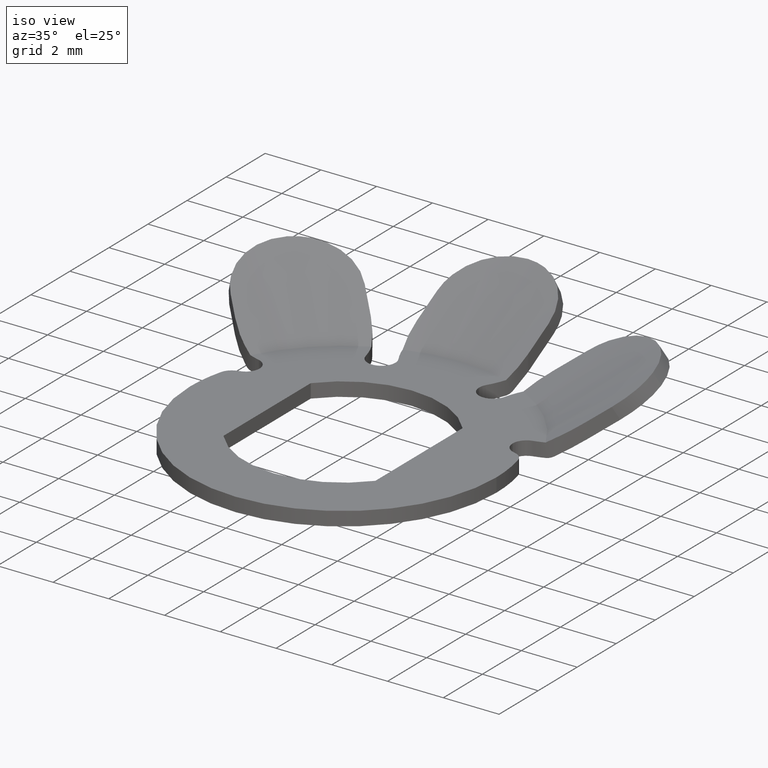
[diagram: clean part render]
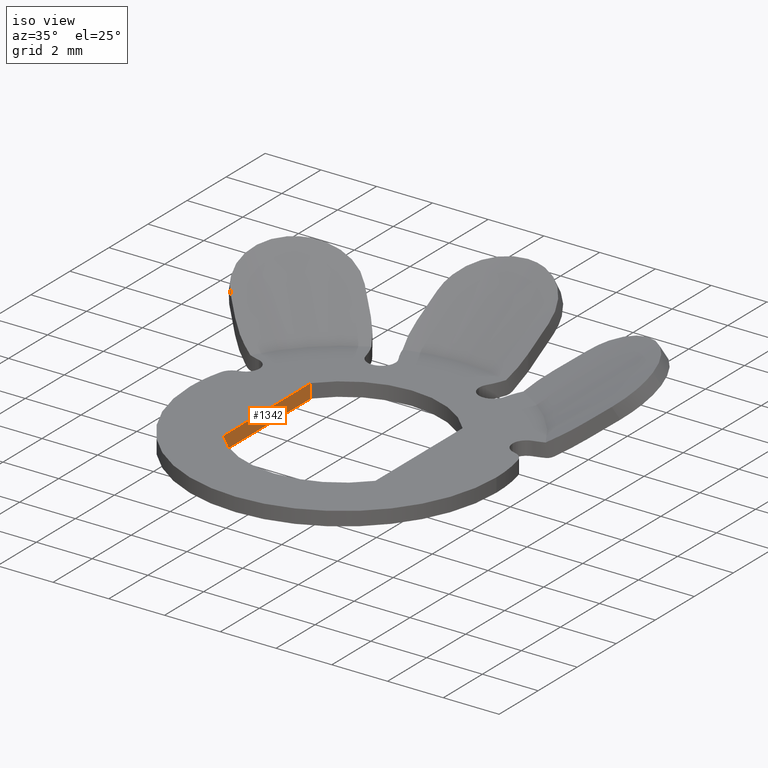
[diagram: same view with one face highlighted and labeled with its STEP entity id]
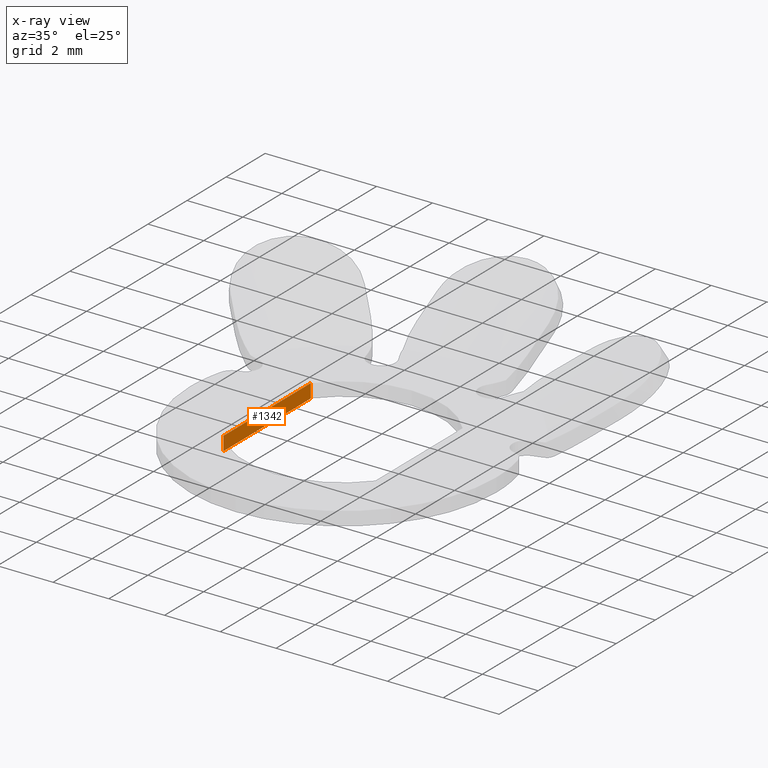
[diagram: x-ray of the same camera — body ghosted, the highlighted face saturated]
A machine part, iso view. The second image highlights one B-rep face of the part: STEP entity #1342.
The next image is the same camera in x-ray: the body ghosted, the highlighted face saturated — about 0% of this face is hidden behind the body in this view.
In plain terms, the highlighted planar face has unit normal (1, 0, 0).
Its self-contained STEP definition (entity closure, byte-faithful):
#20 = EDGE_LOOP ( 'NONE', ( #449, #1097, #1561, #1678 ) ) ;
#97 = LINE ( 'NONE', #351, #1466 ) ;
#129 = DIRECTION ( 'NONE',  ( 0.0000000000000000000, 0.0000000000000000000, -1.000000000000000000 ) ) ;
#140 = CARTESIAN_POINT ( 'NONE',  ( -2.724999999999998300, -2.236067977499791600, 0.5000000000000004400 ) ) ;
#226 = VECTOR ( 'NONE', #1458, 1000.000000000000000 ) ;
#227 = EDGE_CURVE ( 'NONE', #1373, #1472, #739, .T. ) ;
#270 = DIRECTION ( 'NONE',  ( 1.000000000000000000, -0.0000000000000000000, 0.0000000000000000000 ) ) ;
#351 = CARTESIAN_POINT ( 'NONE',  ( -2.724999999999998300, -2.236067977499791600, 2.500000000000000000 ) ) ;
#377 = CARTESIAN_POINT ( 'NONE',  ( -2.725000000000000100, 2.236067977499789800, 0.5000000000000004400 ) ) ;
#406 = CARTESIAN_POINT ( 'NONE',  ( -2.725000000000000100, -2.236067977499789800, 0.0000000000000000000 ) ) ;
#449 = ORIENTED_EDGE ( 'NONE', *, *, #1367, .T. ) ;
#552 = DIRECTION ( 'NONE',  ( 0.0000000000000000000, 0.0000000000000000000, -1.000000000000000000 ) ) ;
#657 = VECTOR ( 'NONE', #1330, 1000.000000000000000 ) ;
#739 = LINE ( 'NONE', #946, #1443 ) ;
#896 = DIRECTION ( 'NONE',  ( 0.0000000000000000000, 0.0000000000000000000, -1.000000000000000000 ) ) ;
#901 = AXIS2_PLACEMENT_3D ( 'NONE', #925, #270, #129 ) ;
#925 = CARTESIAN_POINT ( 'NONE',  ( -2.725000000000000100, -2.236067977499789800, 2.500000000000000000 ) ) ;
#946 = CARTESIAN_POINT ( 'NONE',  ( -2.725000000000000100, 2.236067977499789800, 2.500000000000000000 ) ) ;
#1002 = CARTESIAN_POINT ( 'NONE',  ( -2.725000000000000100, 2.236067977499789800, 0.0000000000000000000 ) ) ;
#1010 = FACE_OUTER_BOUND ( 'NONE', #20, .T. ) ;
#1027 = EDGE_CURVE ( 'NONE', #1472, #1477, #1360, .T. ) ;
#1097 = ORIENTED_EDGE ( 'NONE', *, *, #1473, .T. ) ;
#1285 = LINE ( 'NONE', #1312, #226 ) ;
#1305 = VERTEX_POINT ( 'NONE', #140 ) ;
#1312 = CARTESIAN_POINT ( 'NONE',  ( -2.725000000000000100, 6.000000000000000000, 0.5000000000000004400 ) ) ;
#1325 = PLANE ( 'NONE',  #901 ) ;
#1330 = DIRECTION ( 'NONE',  ( -0.0000000000000000000, -1.000000000000000000, -0.0000000000000000000 ) ) ;
#1342 = ADVANCED_FACE ( 'NONE', ( #1010 ), #1325, .T. ) ;
#1360 = LINE ( 'NONE', #406, #657 ) ;
#1367 = EDGE_CURVE ( 'NONE', #1373, #1305, #1285, .T. ) ;
#1373 = VERTEX_POINT ( 'NONE', #377 ) ;
#1418 = CARTESIAN_POINT ( 'NONE',  ( -2.724999999999998300, -2.236067977499791600, 0.0000000000000000000 ) ) ;
#1443 = VECTOR ( 'NONE', #552, 1000.000000000000000 ) ;
#1458 = DIRECTION ( 'NONE',  ( 0.0000000000000000000, -1.000000000000000000, 0.0000000000000000000 ) ) ;
#1466 = VECTOR ( 'NONE', #896, 1000.000000000000000 ) ;
#1472 = VERTEX_POINT ( 'NONE', #1002 ) ;
#1473 = EDGE_CURVE ( 'NONE', #1305, #1477, #97, .T. ) ;
#1477 = VERTEX_POINT ( 'NONE', #1418 ) ;
#1561 = ORIENTED_EDGE ( 'NONE', *, *, #1027, .F. ) ;
#1678 = ORIENTED_EDGE ( 'NONE', *, *, #227, .F. ) ;